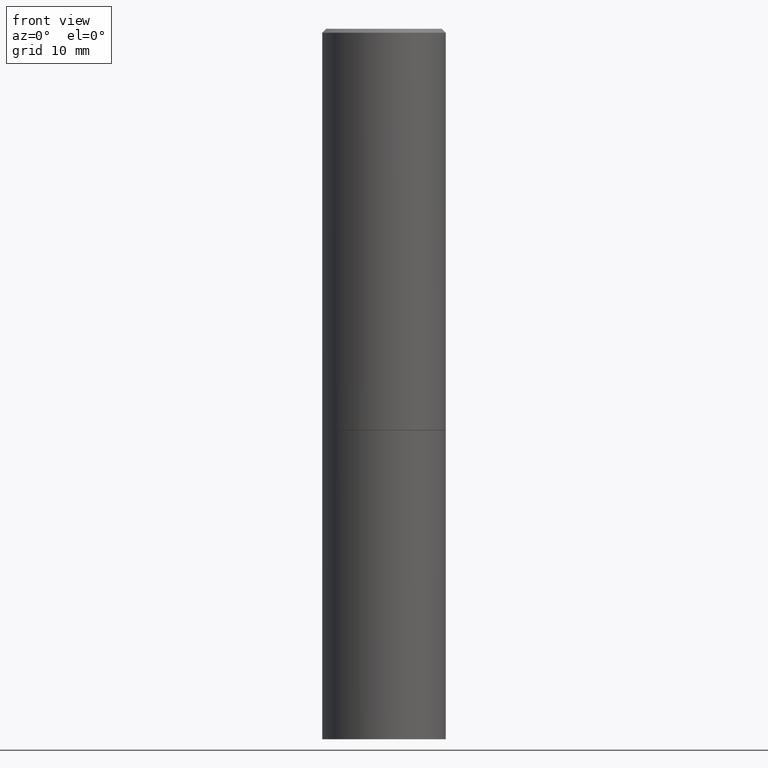
[diagram: clean part render]
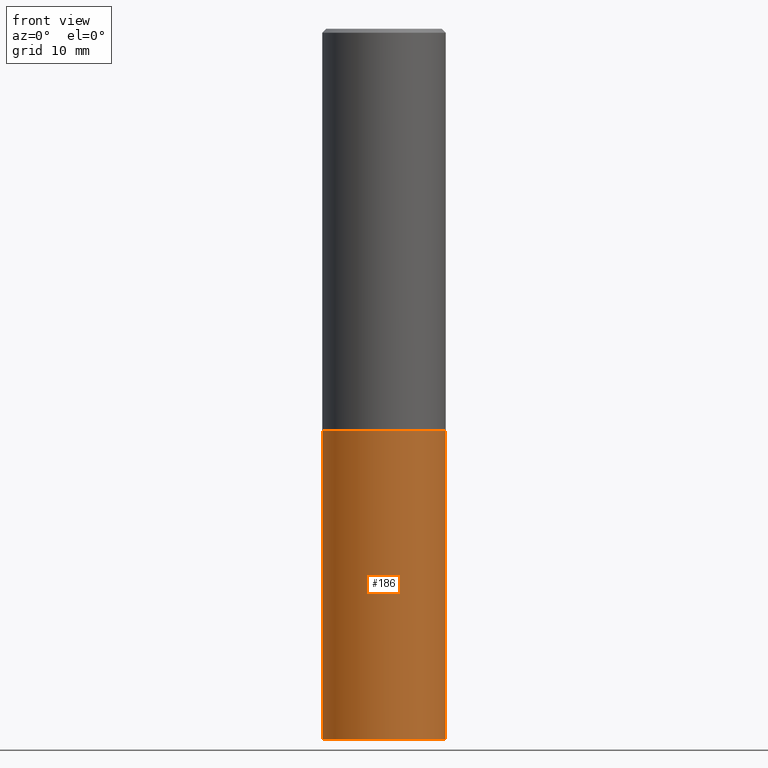
[diagram: same view with one face highlighted and labeled with its STEP entity id]
A machine part, front view. The second image highlights one B-rep face of the part: STEP entity #186.
In plain terms, the highlighted cylindrical surface (partial cylindrical patch) has radius 7.9997 mm, axis along (-0, 0, 1).
Its self-contained STEP definition (entity closure, byte-faithful):
#4 = DIRECTION ( 'NONE',  ( -2.445468806185136597E-29, 3.491481338843145583E-15, 1.000000000000000000 ) ) ;
#41 = ORIENTED_EDGE ( 'NONE', *, *, #305, .F. ) ;
#82 = CARTESIAN_POINT ( 'NONE',  ( 5.006363740022211120E-29, -7.147760596879686624E-15, -2.047199999999999687 ) ) ;
#85 = EDGE_CURVE ( 'NONE', #216, #129, #366, .T. ) ;
#88 = CARTESIAN_POINT ( 'NONE',  ( -0.3149500000000000077, -7.659098656808343322E-15, -2.047199999999999687 ) ) ;
#96 = ORIENTED_EDGE ( 'NONE', *, *, #319, .T. ) ;
#97 = VECTOR ( 'NONE', #304, 39.37007874015748143 ) ;
#100 = ORIENTED_EDGE ( 'NONE', *, *, #85, .F. ) ;
#107 = CARTESIAN_POINT ( 'NONE',  ( -0.3149500000000000077, 2.237854346276435590E-15, -1.549218606675782676E-29 ) ) ;
#109 = DIRECTION ( 'NONE',  ( 1.000000000000000000, -6.982962677686266711E-15, 4.876176775795936353E-29 ) ) ;
#112 = CARTESIAN_POINT ( 'NONE',  ( -0.3149500000000000077, -7.659098656808343322E-15, -3.621999999999999886 ) ) ;
#122 = VERTEX_POINT ( 'NONE', #164 ) ;
#129 = VERTEX_POINT ( 'NONE', #88 ) ;
#141 = DIRECTION ( 'NONE',  ( -2.445468806185136597E-29, 3.491481338843145583E-15, 1.000000000000000000 ) ) ;
#142 = AXIS2_PLACEMENT_3D ( 'NONE', #347, #206, #239 ) ;
#143 = CYLINDRICAL_SURFACE ( 'NONE', #177, 0.3149500000000000077 ) ;
#146 = LINE ( 'NONE', #225, #289 ) ;
#164 = CARTESIAN_POINT ( 'NONE',  ( 0.3149500000000000077, -1.484542950462716186E-14, -3.621999999999999886 ) ) ;
#167 = DIRECTION ( 'NONE',  ( -2.445468806185136877E-29, 3.491481338843145188E-15, 1.000000000000000000 ) ) ;
#177 = AXIS2_PLACEMENT_3D ( 'NONE', #308, #4, #109 ) ;
#186 = ADVANCED_FACE ( 'NONE', ( #282 ), #143, .T. ) ;
#206 = DIRECTION ( 'NONE',  ( -2.445468806185136597E-29, 3.491481338843145583E-15, 1.000000000000000000 ) ) ;
#208 = AXIS2_PLACEMENT_3D ( 'NONE', #82, #141, #253 ) ;
#216 = VERTEX_POINT ( 'NONE', #112 ) ;
#220 = EDGE_CURVE ( 'NONE', #122, #244, #146, .T. ) ;
#225 = CARTESIAN_POINT ( 'NONE',  ( 0.3149500000000000077, -2.199284095337289871E-15, 1.535751875536930130E-29 ) ) ;
#239 = DIRECTION ( 'NONE',  ( 1.000000000000000000, -6.982962677686263555E-15, 0.000000000000000000 ) ) ;
#244 = VERTEX_POINT ( 'NONE', #341 ) ;
#253 = DIRECTION ( 'NONE',  ( 1.000000000000000000, -6.982962677686269866E-15, 0.000000000000000000 ) ) ;
#282 = FACE_OUTER_BOUND ( 'NONE', #354, .T. ) ;
#289 = VECTOR ( 'NONE', #167, 39.37007874015748143 ) ;
#304 = DIRECTION ( 'NONE',  ( -2.445468806185136877E-29, 3.491481338843145188E-15, 1.000000000000000000 ) ) ;
#305 = EDGE_CURVE ( 'NONE', #129, #244, #329, .T. ) ;
#308 = CARTESIAN_POINT ( 'NONE',  ( 0.000000000000000000, 0.000000000000000000, 0.000000000000000000 ) ) ;
#319 = EDGE_CURVE ( 'NONE', #216, #122, #337, .T. ) ;
#329 = CIRCLE ( 'NONE', #208, 0.3149500000000000077 ) ;
#337 = CIRCLE ( 'NONE', #142, 0.3149500000000000077 ) ;
#341 = CARTESIAN_POINT ( 'NONE',  ( 0.3149500000000000077, -9.347044692216978073E-15, -2.047199999999999687 ) ) ;
#347 = CARTESIAN_POINT ( 'NONE',  ( 8.857488016002564476E-29, -1.264614540928987199E-14, -3.621999999999999886 ) ) ;
#354 = EDGE_LOOP ( 'NONE', ( #100, #96, #359, #41 ) ) ;
#359 = ORIENTED_EDGE ( 'NONE', *, *, #220, .T. ) ;
#366 = LINE ( 'NONE', #107, #97 ) ;